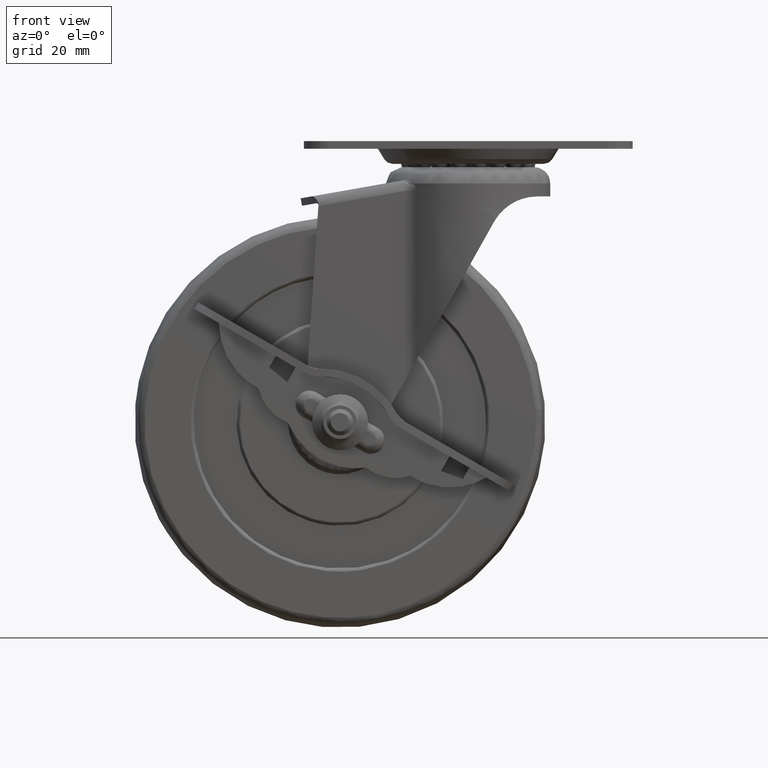
[diagram: clean part render]
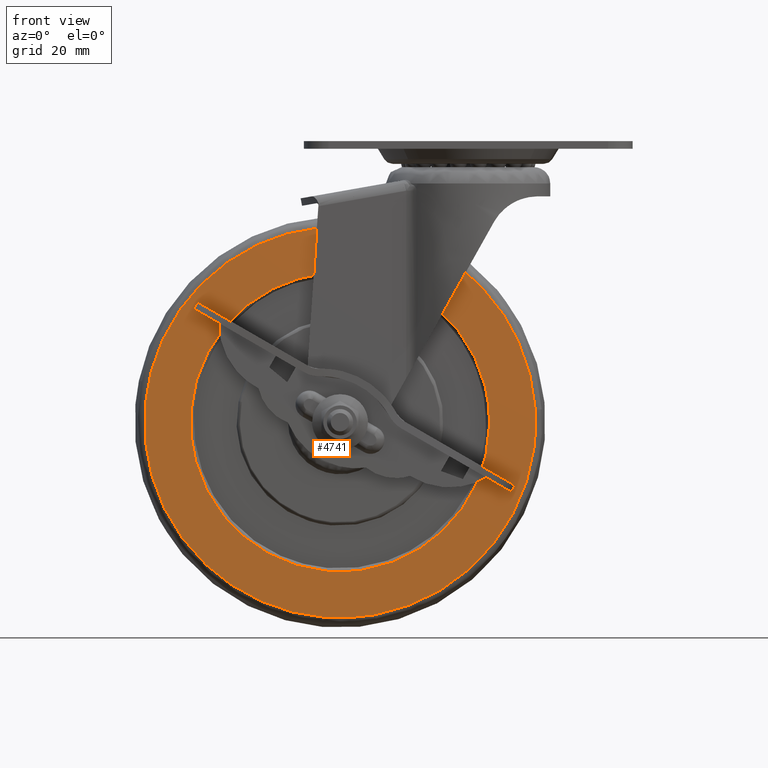
[diagram: same view with one face highlighted and labeled with its STEP entity id]
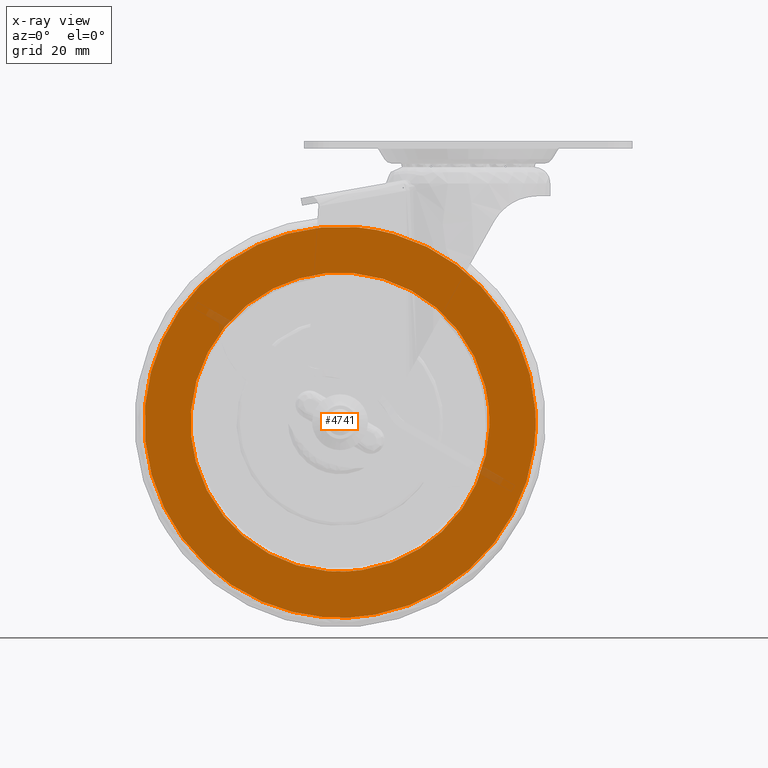
[diagram: x-ray of the same camera — body ghosted, the highlighted face saturated]
A machine part, front view. The second image highlights one B-rep face of the part: STEP entity #4741.
The next image is the same camera in x-ray: the body ghosted, the highlighted face saturated — about 1% of this face is hidden behind the body in this view.
In plain terms, the highlighted face is a freeform B-spline surface patch.
Its self-contained STEP definition (entity closure, byte-faithful):
#2087=CARTESIAN_POINT('',(45.389238144940521,-13.499999999999680,3.172862945959057));
#2088=VERTEX_POINT('',#2087);
#2089=CARTESIAN_POINT('',(0.0,-13.499999999999680,-45.500000000000000));
#2090=VERTEX_POINT('',#2089);
#2091=CARTESIAN_POINT('',(45.389238144940521,-13.499999999999680,3.172862945959057));
#2092=CARTESIAN_POINT('',(45.579259507773017,-13.499999999999670,0.458014404384367));
#2093=CARTESIAN_POINT('',(45.473836464042023,-13.499999999999700,-4.810650881020597));
#2094=CARTESIAN_POINT('',(43.884345538881583,-13.499999999999771,-12.947290433412610));
#2095=CARTESIAN_POINT('',(40.838716261078311,-13.499999999999440,-20.671030886298599));
#2096=CARTESIAN_POINT('',(36.399700941809307,-13.499999999999901,-27.678354351867050));
#2097=CARTESIAN_POINT('',(31.676461103774869,-13.499999999999581,-32.874977459977913));
#2098=CARTESIAN_POINT('',(26.504543150306109,-13.499999999999661,-37.162071698961320));
#2099=CARTESIAN_POINT('',(21.861793193065399,-13.499999999999680,-40.036370210571739));
#2100=CARTESIAN_POINT('',(16.739155614160349,-13.499999999999710,-42.401601138811401));
#2101=CARTESIAN_POINT('',(12.403881742695530,-13.499999999999639,-43.871246635152460));
#2102=CARTESIAN_POINT('',(6.609253540775500,-13.499999999999650,-45.154219536546897));
#2103=CARTESIAN_POINT('',(2.624313478325578,-13.499999999999901,-45.500229967971201));
#2104=CARTESIAN_POINT('',(0.0,-13.499999999999680,-45.500000000000000));
#2105=B_SPLINE_CURVE_WITH_KNOTS('',3,(#2091,#2092,#2093,#2094,#2095,#2096,#2097,#2098,#2099,#2100,#2101,#2102,#2103,#2104),.UNSPECIFIED.,.F.,.U.,(4,1,1,1,1,1,1,1,1,1,1,4),(0.000000164969265,8.164438255729536,15.745794540845610,24.785108597570591,32.949587598958281,40.530795197697422,45.779435793071748,53.069191715921349,56.859868823496932,62.691662955006521,66.773909773505125,74.646800651217347),.UNSPECIFIED.);
#2106=EDGE_CURVE('',#2088,#2090,#2105,.T.);
#2121=CARTESIAN_POINT('',(-45.496407473654571,-13.499999999999680,-0.571754815031597));
#2122=VERTEX_POINT('',#2121);
#2133=CARTESIAN_POINT('',(0.0,-13.499999999999680,-45.500000000000000));
#2134=CARTESIAN_POINT('',(-3.785099121557026,-13.499999999999661,-45.500954717207641));
#2135=CARTESIAN_POINT('',(-9.046677200764604,-13.499999999999760,-44.839665847226250));
#2136=CARTESIAN_POINT('',(-15.937565378878549,-13.499999999999540,-42.720639045350872));
#2137=CARTESIAN_POINT('',(-21.789544006629320,-13.499999999999810,-40.171778865309903));
#2138=CARTESIAN_POINT('',(-27.560121820694722,-13.499999999999639,-36.455219439450538));
#2139=CARTESIAN_POINT('',(-33.057515342172472,-13.499999999999689,-31.500823044612851));
#2140=CARTESIAN_POINT('',(-37.722784624160802,-13.499999999999620,-25.863120400425139));
#2141=CARTESIAN_POINT('',(-41.237792442907690,-13.499999999999959,-19.648146427611131));
#2142=CARTESIAN_POINT('',(-43.467687382109673,-13.499999999999540,-13.768716345799390));
#2143=CARTESIAN_POINT('',(-45.000026964197730,-13.499999999999780,-7.766705805035215));
#2144=CARTESIAN_POINT('',(-45.461929719749243,-13.499999999999799,-3.341073658559062));
#2145=CARTESIAN_POINT('',(-45.496407473654571,-13.499999999999680,-0.571754815031597));
#2146=B_SPLINE_CURVE_WITH_KNOTS('',3,(#2133,#2134,#2135,#2136,#2137,#2138,#2139,#2140,#2141,#2142,#2143,#2144,#2145),.UNSPECIFIED.,.F.,.U.,(4,1,1,1,1,1,1,1,1,1,4),(0.000000147715156,11.354972202338860,15.786222238152970,21.602237767758769,30.464735046704192,36.280611703017698,43.758317221233078,52.343822679540530,57.605914011398063,62.591041499793249,70.899572435514969),.UNSPECIFIED.);
#2147=EDGE_CURVE('',#2090,#2122,#2146,.T.);
#2175=CARTESIAN_POINT('',(0.0,-13.499999999999680,45.500000000000000));
#2176=VERTEX_POINT('',#2175);
#2177=CARTESIAN_POINT('',(0.0,-13.499999999999680,45.500000000000000));
#2178=CARTESIAN_POINT('',(3.557153041309913,-13.499999999999689,45.500743418098672));
#2179=CARTESIAN_POINT('',(8.892372957735404,-13.499999999999710,44.871055890544973));
#2180=CARTESIAN_POINT('',(15.885216178441169,-13.499999999999631,42.759801563951257));
#2181=CARTESIAN_POINT('',(21.590406279921741,-13.499999999999710,40.237582553252473));
#2182=CARTESIAN_POINT('',(26.797151577242339,-13.499999999999710,36.952237486056163));
#2183=CARTESIAN_POINT('',(31.154339724654442,-13.499999999999620,33.277082846707032));
#2184=CARTESIAN_POINT('',(34.852502558573093,-13.499999999999741,29.421831515223680));
#2185=CARTESIAN_POINT('',(38.601308698857011,-13.499999999999639,24.433001225453591));
#2186=CARTESIAN_POINT('',(41.619872524118158,-13.499999999999700,18.760237912421921));
#2187=CARTESIAN_POINT('',(44.234018985298889,-13.499999999999689,11.560492664149580));
#2188=CARTESIAN_POINT('',(45.154330802458411,-13.499999999999670,6.543989563035168));
#2189=CARTESIAN_POINT('',(45.389238144940521,-13.499999999999680,3.172862945959057));
#2190=B_SPLINE_CURVE_WITH_KNOTS('',3,(#2177,#2178,#2179,#2180,#2181,#2182,#2183,#2184,#2185,#2186,#2187,#2188,#2189),.UNSPECIFIED.,.F.,.U.,(4,1,1,1,1,1,1,1,1,1,4),(0.000000135975853,10.671229066547619,16.006848341519781,21.876037688361151,29.345901115419618,34.414634628425851,38.949995766436778,45.352705498888028,53.089393830323957,58.158222083012397,68.295890639066556),.UNSPECIFIED.);
#2191=EDGE_CURVE('',#2176,#2088,#2190,.T.);
#2193=CARTESIAN_POINT('',(-45.496407473654571,-13.499999999999680,-0.571754815031597));
#2194=CARTESIAN_POINT('',(-45.531995611938157,-13.499999999999670,2.242203488739807));
#2195=CARTESIAN_POINT('',(-45.063800045060468,-13.499999999999760,8.064478228204349));
#2196=CARTESIAN_POINT('',(-42.911635979117911,-13.499999999999510,15.782642475715219));
#2197=CARTESIAN_POINT('',(-40.095146503400187,-13.500000000000080,21.732793601347911));
#2198=CARTESIAN_POINT('',(-36.556397596502883,-13.499999999999000,27.383631336521329));
#2199=CARTESIAN_POINT('',(-32.263951770672882,-13.500000000000201,32.397812081590452));
#2200=CARTESIAN_POINT('',(-26.186204835972610,-13.499999999999551,37.441653566327631));
#2201=CARTESIAN_POINT('',(-20.433619249480920,-13.499999999999600,40.851071560891938));
#2202=CARTESIAN_POINT('',(-14.506619730282400,-13.499999999999840,43.241985279528862));
#2203=CARTESIAN_POINT('',(-7.973335623550280,-13.499999999999639,45.000141464414007));
#2204=CARTESIAN_POINT('',(-3.095639855447673,-13.499999999999590,45.500492628932967));
#2205=CARTESIAN_POINT('',(0.0,-13.499999999999680,45.500000000000000));
#2206=B_SPLINE_CURVE_WITH_KNOTS('',3,(#2193,#2194,#2195,#2196,#2197,#2198,#2199,#2200,#2201,#2202,#2203,#2204,#2205),.UNSPECIFIED.,.F.,.U.,(4,1,1,1,1,1,1,1,1,1,4),(0.000000154257606,8.442546268995514,17.447942084664898,23.920602803890091,28.141847028655540,37.428581123702607,43.619804423198929,51.780976755850311,57.409359842889330,62.756325443981353,72.043117552581435),.UNSPECIFIED.);
#2207=EDGE_CURVE('',#2122,#2176,#2206,.T.);
#2455=CARTESIAN_POINT('',(15.676201826861680,-13.499999999999311,-57.419066612171449));
#2456=VERTEX_POINT('',#2455);
#2457=CARTESIAN_POINT('',(58.845067721411681,-13.499999999999300,8.941505452486659));
#2458=VERTEX_POINT('',#2457);
#2459=CARTESIAN_POINT('',(15.676201826861680,-13.499999999999311,-57.419066612171449));
#2460=CARTESIAN_POINT('',(18.831113281936009,-13.499999999999270,-56.557989072096163));
#2461=CARTESIAN_POINT('',(24.679327412918180,-13.499999999999380,-54.429870785239501));
#2462=CARTESIAN_POINT('',(31.407869269938580,-13.499999999999300,-50.708135527937927));
#2463=CARTESIAN_POINT('',(37.025884396438137,-13.499999999999350,-46.730383076447843));
#2464=CARTESIAN_POINT('',(42.825128055887397,-13.499999999999330,-41.690204353341571));
#2465=CARTESIAN_POINT('',(48.072150489776568,-13.499999999999320,-35.447285656797220));
#2466=CARTESIAN_POINT('',(52.129344517778790,-13.499999999999350,-28.929621611664171));
#2467=CARTESIAN_POINT('',(55.071438680833232,-13.499999999999320,-22.952397113893721));
#2468=CARTESIAN_POINT('',(57.282932695141930,-13.499999999999330,-16.660882674173092));
#2469=CARTESIAN_POINT('',(58.746200268559143,-13.499999999999300,-10.162432450865580));
#2470=CARTESIAN_POINT('',(59.763744787345573,-13.499999999999480,-1.868708456882319));
#2471=CARTESIAN_POINT('',(59.506563758350033,-13.499999999999060,4.593452845717502));
#2472=CARTESIAN_POINT('',(58.845067721411681,-13.499999999999300,8.941505452486659));
#2473=B_SPLINE_CURVE_WITH_KNOTS('',3,(#2459,#2460,#2461,#2462,#2463,#2464,#2465,#2466,#2467,#2468,#2469,#2470,#2471,#2472),.UNSPECIFIED.,.F.,.U.,(4,1,1,1,1,1,1,1,1,1,1,4),(0.000000116045953,9.810895125342952,18.606933106565080,23.004953218364530,30.447772146619482,41.611983990220203,47.363108529056611,53.452663697156723,61.572073856021959,67.323320688870453,73.412870988795490,86.606879355245155),.UNSPECIFIED.);
#2474=EDGE_CURVE('',#2456,#2458,#2473,.T.);
#2555=CARTESIAN_POINT('',(0.0,-13.499999999999339,-59.520521745329312));
#2556=VERTEX_POINT('',#2555);
#2557=CARTESIAN_POINT('',(0.0,-13.499999999999339,-59.520521745329312));
#2558=CARTESIAN_POINT('',(5.287885738293540,-13.499999999999369,-59.521453975440373));
#2559=CARTESIAN_POINT('',(10.575286661647350,-13.499999999999289,-58.812860431471968));
#2560=CARTESIAN_POINT('',(15.676201826861680,-13.499999999999311,-57.419066612171449));
#2561=B_SPLINE_CURVE_WITH_KNOTS('',3,(#2557,#2558,#2559,#2560),.UNSPECIFIED.,.F.,.U.,(4,4),(1.503736E-009,15.863383261188339),.UNSPECIFIED.);
#2562=EDGE_CURVE('',#2556,#2456,#2561,.T.);
#2564=CARTESIAN_POINT('',(-59.520521745329170,-13.499999999999339,-0.000004042738993));
#2565=VERTEX_POINT('',#2564);
#2566=CARTESIAN_POINT('',(-59.520521745329170,-13.499999999999339,-0.000004042738993));
#2567=CARTESIAN_POINT('',(-59.520925890944710,-13.499999999999289,-3.652147907840379));
#2568=CARTESIAN_POINT('',(-58.868580904555053,-13.499999999999430,-10.712790591671780));
#2569=CARTESIAN_POINT('',(-56.196446448687887,-13.499999999999259,-20.369275377897392));
#2570=CARTESIAN_POINT('',(-51.977267517712782,-13.499999999999570,-29.580744911880782));
#2571=CARTESIAN_POINT('',(-46.743076746520543,-13.499999999998950,-37.260543661325293));
#2572=CARTESIAN_POINT('',(-40.286627985485033,-13.499999999999771,-44.083237249434667));
#2573=CARTESIAN_POINT('',(-34.170969435068230,-13.499999999999140,-48.947304062561393));
#2574=CARTESIAN_POINT('',(-27.896184851888631,-13.499999999999361,-52.708018609851322));
#2575=CARTESIAN_POINT('',(-21.034422876222830,-13.499999999999391,-55.876714157443821));
#2576=CARTESIAN_POINT('',(-11.808322634182330,-13.499999999999339,-58.706541436799100));
#2577=CARTESIAN_POINT('',(-4.260848038531247,-13.499999999999220,-59.521174887759280));
#2578=CARTESIAN_POINT('',(0.0,-13.499999999999339,-59.520521745329312));
#2579=B_SPLINE_CURVE_WITH_KNOTS('',3,(#2566,#2567,#2568,#2569,#2570,#2571,#2572,#2573,#2574,#2575,#2576,#2577,#2578),.UNSPECIFIED.,.F.,.U.,(4,1,1,1,1,1,1,1,1,1,4),(0.000000129277751,10.956361141281580,21.182397262942661,29.947569280404029,41.269177960635211,48.938573169438747,58.068955876973433,64.642838934178883,70.851502343494104,80.712320473875764,93.494761313838680),.UNSPECIFIED.);
#2580=EDGE_CURVE('',#2565,#2556,#2579,.T.);
#2582=CARTESIAN_POINT('',(0.0,-13.499999999999339,59.520521745329312));
#2583=VERTEX_POINT('',#2582);
#2584=CARTESIAN_POINT('',(0.0,-13.499999999999339,59.520521745329312));
#2585=CARTESIAN_POINT('',(-3.895656691716610,-13.499999999999339,59.521084657659422));
#2586=CARTESIAN_POINT('',(-10.104039216903290,-13.499999999999380,58.908640763754349));
#2587=CARTESIAN_POINT('',(-18.600958962294118,-13.499999999999289,56.696934137617063));
#2588=CARTESIAN_POINT('',(-25.065187454341238,-13.499999999999320,54.134786267380171));
#2589=CARTESIAN_POINT('',(-31.719855577007550,-13.499999999999440,50.551569291067558));
#2590=CARTESIAN_POINT('',(-37.681891860576641,-13.499999999999300,46.297651778868619));
#2591=CARTESIAN_POINT('',(-43.650823183304773,-13.499999999999270,40.718615760071572));
#2592=CARTESIAN_POINT('',(-48.452036022997127,-13.499999999999361,34.868309985571841));
#2593=CARTESIAN_POINT('',(-52.952341830040922,-13.499999999999350,27.614784610011981));
#2594=CARTESIAN_POINT('',(-56.147800043305892,-13.499999999999311,20.346043064089809));
#2595=CARTESIAN_POINT('',(-58.811330185460093,-13.499999999999419,10.834321727176301));
#2596=CARTESIAN_POINT('',(-59.521338551166977,-13.499999999999220,4.260895326674311));
#2597=CARTESIAN_POINT('',(-59.520521745329170,-13.499999999999339,-0.000004042738993));
#2598=B_SPLINE_CURVE_WITH_KNOTS('',3,(#2584,#2585,#2586,#2587,#2588,#2589,#2590,#2591,#2592,#2593,#2594,#2595,#2596,#2597),.UNSPECIFIED.,.F.,.U.,(4,1,1,1,1,1,1,1,1,1,1,4),(0.000000129032230,11.686832895486360,18.625888963337282,26.295417236816249,32.504078460453563,41.269179973927351,48.208217625472230,56.973317414282299,63.912429258212811,73.773220203047941,80.712324408390600,93.494765870954623),.UNSPECIFIED.);
#2599=EDGE_CURVE('',#2583,#2565,#2598,.T.);
#2601=CARTESIAN_POINT('',(58.845067721411681,-13.499999999999300,8.941505452486659));
#2602=CARTESIAN_POINT('',(58.398862632644672,-13.499999999999339,11.879176766137009));
#2603=CARTESIAN_POINT('',(57.065040437651056,-13.499999999999281,17.687407019373630));
#2604=CARTESIAN_POINT('',(53.504340561658047,-13.499999999999311,26.722832088778350));
#2605=CARTESIAN_POINT('',(48.636184293859657,-13.499999999999350,34.759375970095419));
#2606=CARTESIAN_POINT('',(42.986190740698177,-13.499999999999320,41.392584591017084));
#2607=CARTESIAN_POINT('',(37.697191215149331,-13.499999999999339,46.226812958935412));
#2608=CARTESIAN_POINT('',(31.448487411995611,-13.499999999999339,50.752447270685970));
#2609=CARTESIAN_POINT('',(24.340543857651319,-13.499999999999311,54.552037001634552));
#2610=CARTESIAN_POINT('',(17.383369179133361,-13.499999999999361,57.043405942933830));
#2611=CARTESIAN_POINT('',(9.464180172443340,-13.499999999999350,58.969013418642788));
#2612=CARTESIAN_POINT('',(3.961879907437412,-13.499999999999419,59.521118186801573));
#2613=CARTESIAN_POINT('',(0.0,-13.499999999999339,59.520521745329312));
#2614=B_SPLINE_CURVE_WITH_KNOTS('',3,(#2601,#2602,#2603,#2604,#2605,#2606,#2607,#2608,#2609,#2610,#2611,#2612,#2613),.UNSPECIFIED.,.F.,.U.,(4,1,1,1,1,1,1,1,1,1,4),(0.000000110477231,8.914083141703273,17.828275191101909,29.053508245924931,36.977239914400663,43.910314054913250,50.513397439004343,60.087894036506697,68.011599452464168,72.633766898712253,84.519242074717255),.UNSPECIFIED.);
#2615=EDGE_CURVE('',#2458,#2583,#2614,.T.);
#4723=CARTESIAN_POINT('',(-65.466577186137826,-13.499999999999680,-65.466623871907331));
#4724=CARTESIAN_POINT('',(-65.466577186137826,-13.499999999999680,65.466624936217201));
#4725=CARTESIAN_POINT('',(65.465643600683464,-13.499999999999680,-65.466623871907331));
#4726=CARTESIAN_POINT('',(65.465643600683464,-13.499999999999680,65.466624936217201));
#4727=B_SPLINE_SURFACE_WITH_KNOTS('',1,1,((#4723,#4725),(#4724,#4726)),.UNSPECIFIED.,.F.,.F.,.U.,(2,2),(2,2),(0.0,130.933248808124490),(0.0,130.932220786821290),.UNSPECIFIED.);
#4728=ORIENTED_EDGE('',*,*,#2562,.T.);
#4729=ORIENTED_EDGE('',*,*,#2474,.T.);
#4730=ORIENTED_EDGE('',*,*,#2615,.T.);
#4731=ORIENTED_EDGE('',*,*,#2599,.T.);
#4732=ORIENTED_EDGE('',*,*,#2580,.T.);
#4733=EDGE_LOOP('',(#4728,#4729,#4730,#4731,#4732));
#4734=FACE_OUTER_BOUND('',#4733,.T.);
#4735=ORIENTED_EDGE('',*,*,#2147,.T.);
#4736=ORIENTED_EDGE('',*,*,#2207,.T.);
#4737=ORIENTED_EDGE('',*,*,#2191,.T.);
#4738=ORIENTED_EDGE('',*,*,#2106,.T.);
#4739=EDGE_LOOP('',(#4735,#4736,#4737,#4738));
#4740=FACE_BOUND('',#4739,.T.);
#4741=ADVANCED_FACE('',(#4734,#4740),#4727,.F.);